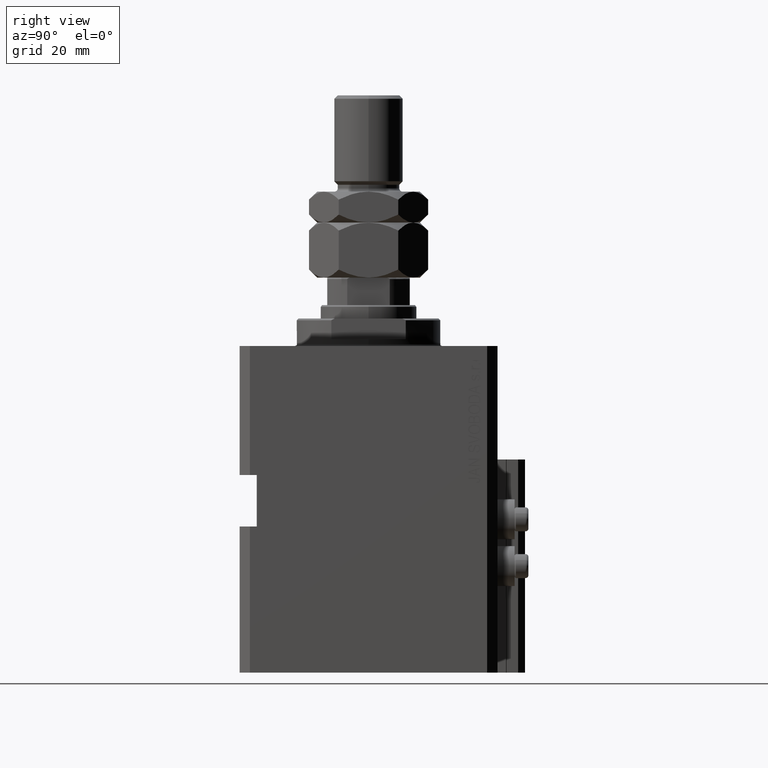
[diagram: clean part render]
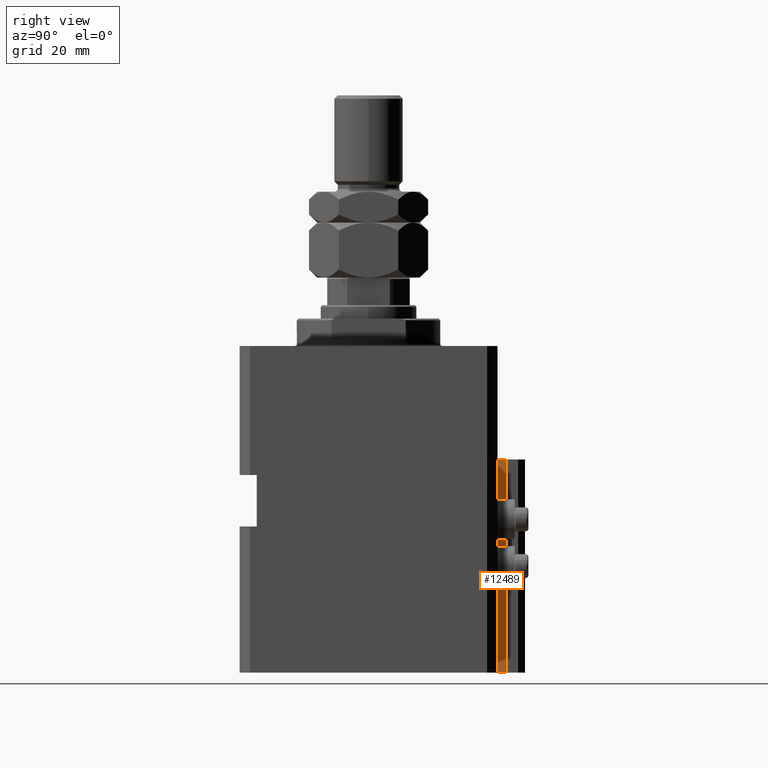
[diagram: same view with one face highlighted and labeled with its STEP entity id]
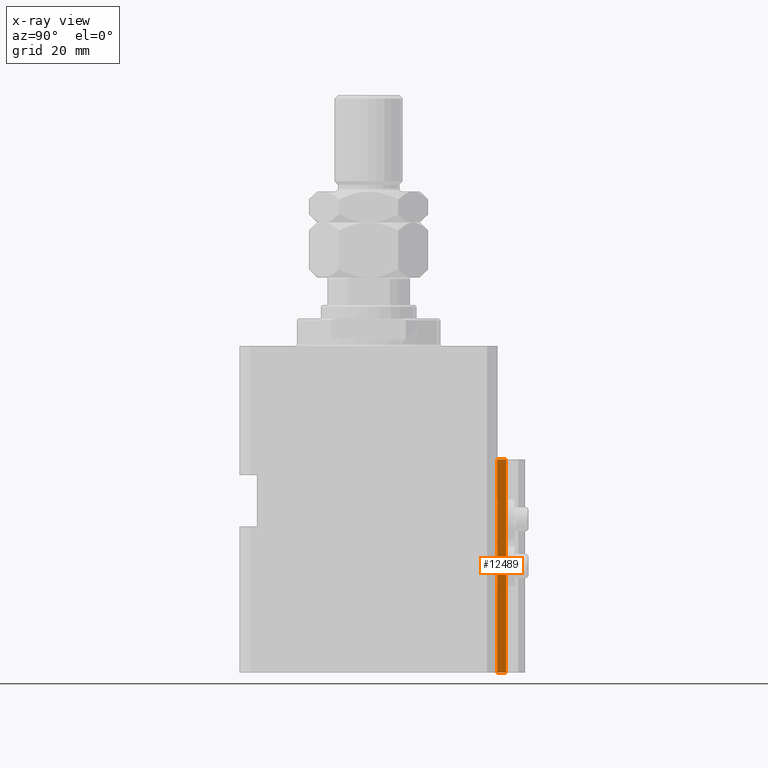
[diagram: x-ray of the same camera — body ghosted, the highlighted face saturated]
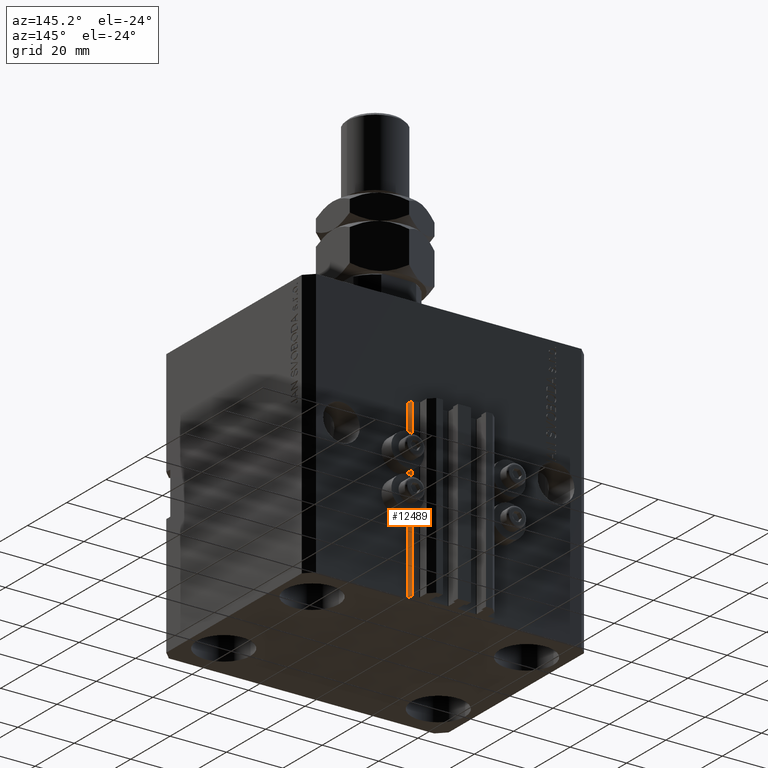
[diagram: same view with one face highlighted and labeled with its STEP entity id]
A machine part, right view. The second image highlights one B-rep face of the part: STEP entity #12489.
The next image is the same camera in x-ray: the body ghosted, the highlighted face saturated — about 0% of this face is hidden behind the body in this view.
A second angle (auxiliary view) of the same face is appended — the face is thin or edge-on in the first view.
In plain terms, the highlighted planar face has unit normal (1, 0, 0).
Its self-contained STEP definition (entity closure, byte-faithful):
#497 = FACE_OUTER_BOUND ( 'NONE', #37157, .T. ) ;
#992 = DIRECTION ( 'NONE',  ( 0.000000000000000000, 0.000000000000000000, -1.000000000000000000 ) ) ;
#1521 = CARTESIAN_POINT ( 'NONE',  ( 14.49999999999999645, 40.00000000000002132, -33.00000000000000000 ) ) ;
#1606 = EDGE_CURVE ( 'NONE', #37051, #38540, #41597, .T. ) ;
#3203 = CARTESIAN_POINT ( 'NONE',  ( 14.49999999999999645, 37.50000000000000711, -33.00000000000000000 ) ) ;
#3978 = VECTOR ( 'NONE', #48828, 1000.000000000000000 ) ;
#4254 = AXIS2_PLACEMENT_3D ( 'NONE', #31380, #23394, #992 ) ;
#11594 = DIRECTION ( 'NONE',  ( 0.000000000000000000, 1.000000000000000000, 0.000000000000000000 ) ) ;
#12407 = EDGE_CURVE ( 'NONE', #35809, #19876, #18193, .T. ) ;
#12489 = ADVANCED_FACE ( 'NONE', ( #497 ), #19161, .T. ) ;
#12494 = ORIENTED_EDGE ( 'NONE', *, *, #12407, .T. ) ;
#18193 = LINE ( 'NONE', #45086, #34458 ) ;
#19161 = PLANE ( 'NONE',  #4254 ) ;
#19876 = VERTEX_POINT ( 'NONE', #1521 ) ;
#23394 = DIRECTION ( 'NONE',  ( 1.000000000000000000, 0.000000000000000000, 0.000000000000000000 ) ) ;
#25723 = EDGE_CURVE ( 'NONE', #37051, #35809, #30531, .T. ) ;
#26153 = CARTESIAN_POINT ( 'NONE',  ( 14.49999999999999645, 37.50000000000000711, -95.00000000000000000 ) ) ;
#26659 = VECTOR ( 'NONE', #45286, 1000.000000000000000 ) ;
#30531 = LINE ( 'NONE', #45717, #32783 ) ;
#31380 = CARTESIAN_POINT ( 'NONE',  ( 14.49999999999999645, 37.50000000000000711, -95.00000000000000000 ) ) ;
#31862 = CARTESIAN_POINT ( 'NONE',  ( 14.49999999999999645, 37.50000000000000711, -95.00000000000000000 ) ) ;
#32783 = VECTOR ( 'NONE', #11594, 1000.000000000000000 ) ;
#33116 = ORIENTED_EDGE ( 'NONE', *, *, #25723, .T. ) ;
#34377 = CARTESIAN_POINT ( 'NONE',  ( 14.49999999999999645, 37.50000000000000711, -33.00000000000000000 ) ) ;
#34458 = VECTOR ( 'NONE', #37871, 1000.000000000000000 ) ;
#35809 = VERTEX_POINT ( 'NONE', #45050 ) ;
#37051 = VERTEX_POINT ( 'NONE', #31862 ) ;
#37157 = EDGE_LOOP ( 'NONE', ( #42596, #40386, #33116, #12494 ) ) ;
#37327 = LINE ( 'NONE', #3203, #26659 ) ;
#37871 = DIRECTION ( 'NONE',  ( 0.000000000000000000, 0.000000000000000000, 1.000000000000000000 ) ) ;
#38540 = VERTEX_POINT ( 'NONE', #34377 ) ;
#39775 = EDGE_CURVE ( 'NONE', #38540, #19876, #37327, .T. ) ;
#40386 = ORIENTED_EDGE ( 'NONE', *, *, #1606, .F. ) ;
#41597 = LINE ( 'NONE', #26153, #3978 ) ;
#42596 = ORIENTED_EDGE ( 'NONE', *, *, #39775, .F. ) ;
#45050 = CARTESIAN_POINT ( 'NONE',  ( 14.49999999999999645, 40.00000000000002132, -95.00000000000000000 ) ) ;
#45086 = CARTESIAN_POINT ( 'NONE',  ( 14.49999999999999645, 40.00000000000002132, -95.00000000000000000 ) ) ;
#45286 = DIRECTION ( 'NONE',  ( 0.000000000000000000, 1.000000000000000000, 0.000000000000000000 ) ) ;
#45717 = CARTESIAN_POINT ( 'NONE',  ( 14.49999999999999645, 37.50000000000000711, -95.00000000000000000 ) ) ;
#48828 = DIRECTION ( 'NONE',  ( 0.000000000000000000, 0.000000000000000000, 1.000000000000000000 ) ) ;